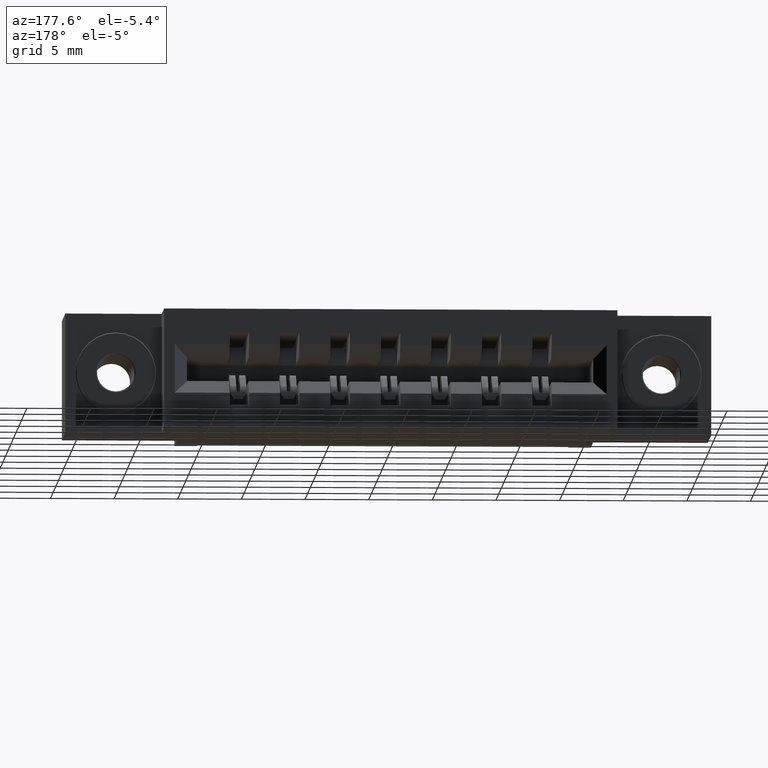
[diagram: clean part render]
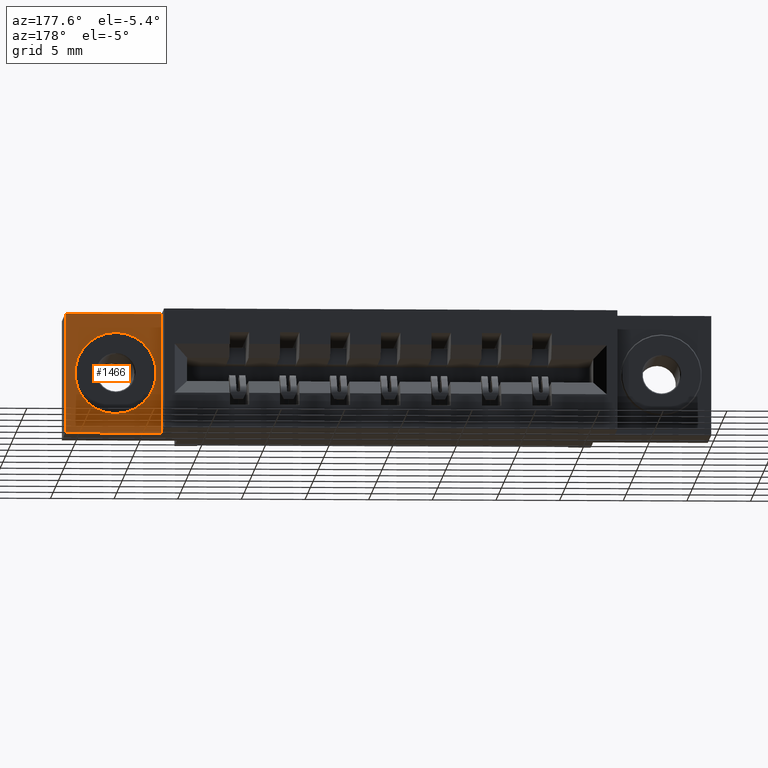
[diagram: same view with one face highlighted and labeled with its STEP entity id]
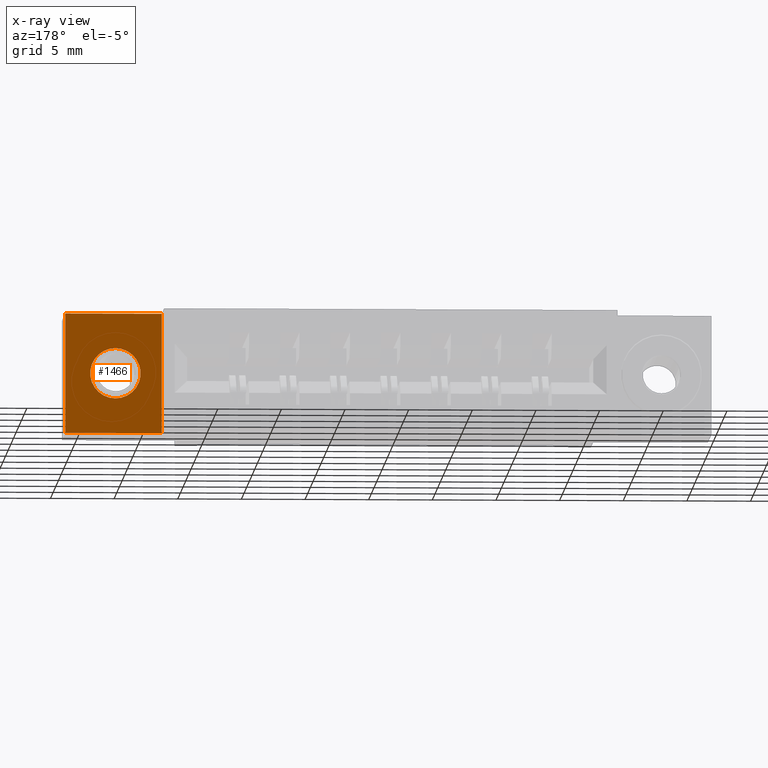
[diagram: x-ray of the same camera — body ghosted, the highlighted face saturated]
A machine part, auxiliary view. The second image highlights one B-rep face of the part: STEP entity #1466.
The next image is the same camera in x-ray: the body ghosted, the highlighted face saturated — about 0% of this face is hidden behind the body in this view.
In plain terms, the highlighted planar face has unit normal (0, -1, 0).
Its self-contained STEP definition (entity closure, byte-faithful):
#55 = DIRECTION ( 'NONE',  ( 0.0000000000000000000, 0.0000000000000000000, -1.000000000000000000 ) ) ;
#250 = CARTESIAN_POINT ( 'NONE',  ( 1.843000000000000000, 0.4199999999999999800, -0.2630000000000001200 ) ) ;
#316 = VECTOR ( 'NONE', #7887, 39.37007874015748100 ) ;
#471 = ORIENTED_EDGE ( 'NONE', *, *, #8622, .F. ) ;
#616 = DIRECTION ( 'NONE',  ( 0.0000000000000000000, 0.0000000000000000000, -1.000000000000000000 ) ) ;
#710 = CARTESIAN_POINT ( 'NONE',  ( 1.700000000000000000, 0.4199999999999999800, 0.0000000000000000000 ) ) ;
#1020 = ORIENTED_EDGE ( 'NONE', *, *, #8009, .F. ) ;
#1154 = ORIENTED_EDGE ( 'NONE', *, *, #8881, .T. ) ;
#1296 = VERTEX_POINT ( 'NONE', #2374 ) ;
#1333 = CARTESIAN_POINT ( 'NONE',  ( 1.998000000000000000, 0.4199999999999999800, 0.0000000000000000000 ) ) ;
#1466 = ADVANCED_FACE ( 'NONE', ( #8934, #7261 ), #9185, .F. ) ;
#1699 = CARTESIAN_POINT ( 'NONE',  ( 1.700000000000000000, 0.4199999999999999800, 0.0000000000000000000 ) ) ;
#1931 = CARTESIAN_POINT ( 'NONE',  ( 1.700000000000000000, 0.4199999999999999800, 0.0000000000000000000 ) ) ;
#2109 = LINE ( 'NONE', #1333, #316 ) ;
#2245 = ORIENTED_EDGE ( 'NONE', *, *, #6336, .T. ) ;
#2374 = CARTESIAN_POINT ( 'NONE',  ( 1.998000000000000000, 0.4200000000000000400, -0.3700000000000000000 ) ) ;
#2784 = DIRECTION ( 'NONE',  ( 0.0000000000000000000, 0.0000000000000000000, -1.000000000000000000 ) ) ;
#2866 = CARTESIAN_POINT ( 'NONE',  ( 1.998000000000000000, 0.4199999999999999800, 0.0000000000000000000 ) ) ;
#2916 = CARTESIAN_POINT ( 'NONE',  ( 1.843000000000000000, 0.4199999999999999800, -0.1850000000000000000 ) ) ;
#3272 = VERTEX_POINT ( 'NONE', #710 ) ;
#3365 = CIRCLE ( 'NONE', #4069, 0.07800000000000009700 ) ;
#4069 = AXIS2_PLACEMENT_3D ( 'NONE', #2916, #9448, #616 ) ;
#4232 = CARTESIAN_POINT ( 'NONE',  ( 1.843000000000000000, 0.4199999999999999800, -0.1069999999999999300 ) ) ;
#4391 = CARTESIAN_POINT ( 'NONE',  ( 1.998000000000000000, 0.4199999999999999800, 0.0000000000000000000 ) ) ;
#4507 = AXIS2_PLACEMENT_3D ( 'NONE', #1699, #4982, #55 ) ;
#4982 = DIRECTION ( 'NONE',  ( 0.0000000000000000000, -1.000000000000000000, -0.0000000000000000000 ) ) ;
#5645 = CARTESIAN_POINT ( 'NONE',  ( 1.843000000000000000, 0.4199999999999999800, -0.1850000000000000000 ) ) ;
#5942 = DIRECTION ( 'NONE',  ( -1.000000000000000000, 0.0000000000000000000, 4.583637573262184100E-016 ) ) ;
#6027 = CIRCLE ( 'NONE', #9795, 0.07800000000000009700 ) ;
#6136 = VERTEX_POINT ( 'NONE', #8076 ) ;
#6336 = EDGE_CURVE ( 'NONE', #3272, #8547, #2109, .T. ) ;
#6468 = LINE ( 'NONE', #4391, #9790 ) ;
#6887 = DIRECTION ( 'NONE',  ( -0.0000000000000000000, -0.0000000000000000000, 1.000000000000000000 ) ) ;
#6944 = EDGE_CURVE ( 'NONE', #6136, #3272, #7989, .T. ) ;
#7261 = FACE_OUTER_BOUND ( 'NONE', #10163, .T. ) ;
#7617 = VERTEX_POINT ( 'NONE', #250 ) ;
#7635 = VECTOR ( 'NONE', #5942, 39.37007874015748100 ) ;
#7665 = VERTEX_POINT ( 'NONE', #4232 ) ;
#7887 = DIRECTION ( 'NONE',  ( 1.000000000000000000, -0.0000000000000000000, -0.0000000000000000000 ) ) ;
#7989 = LINE ( 'NONE', #1931, #8764 ) ;
#8009 = EDGE_CURVE ( 'NONE', #7617, #7665, #3365, .T. ) ;
#8076 = CARTESIAN_POINT ( 'NONE',  ( 1.700000000000000000, 0.4199999999999999800, -0.3699999999999998800 ) ) ;
#8167 = LINE ( 'NONE', #9285, #7635 ) ;
#8321 = EDGE_LOOP ( 'NONE', ( #471, #1020 ) ) ;
#8547 = VERTEX_POINT ( 'NONE', #2866 ) ;
#8622 = EDGE_CURVE ( 'NONE', #7665, #7617, #6027, .T. ) ;
#8764 = VECTOR ( 'NONE', #6887, 39.37007874015748100 ) ;
#8881 = EDGE_CURVE ( 'NONE', #1296, #6136, #8167, .T. ) ;
#8934 = FACE_BOUND ( 'NONE', #8321, .T. ) ;
#8936 = EDGE_CURVE ( 'NONE', #8547, #1296, #6468, .T. ) ;
#9185 = PLANE ( 'NONE',  #4507 ) ;
#9285 = CARTESIAN_POINT ( 'NONE',  ( 1.998000000000000000, 0.4199999999999999800, -0.3700000000000000000 ) ) ;
#9448 = DIRECTION ( 'NONE',  ( 0.0000000000000000000, 1.000000000000000000, -0.0000000000000000000 ) ) ;
#9636 = DIRECTION ( 'NONE',  ( 0.0000000000000000000, 0.0000000000000000000, -1.000000000000000000 ) ) ;
#9654 = ORIENTED_EDGE ( 'NONE', *, *, #6944, .T. ) ;
#9669 = DIRECTION ( 'NONE',  ( 0.0000000000000000000, 1.000000000000000000, -0.0000000000000000000 ) ) ;
#9790 = VECTOR ( 'NONE', #2784, 39.37007874015748100 ) ;
#9795 = AXIS2_PLACEMENT_3D ( 'NONE', #5645, #9669, #9636 ) ;
#10018 = ORIENTED_EDGE ( 'NONE', *, *, #8936, .T. ) ;
#10163 = EDGE_LOOP ( 'NONE', ( #2245, #10018, #1154, #9654 ) ) ;